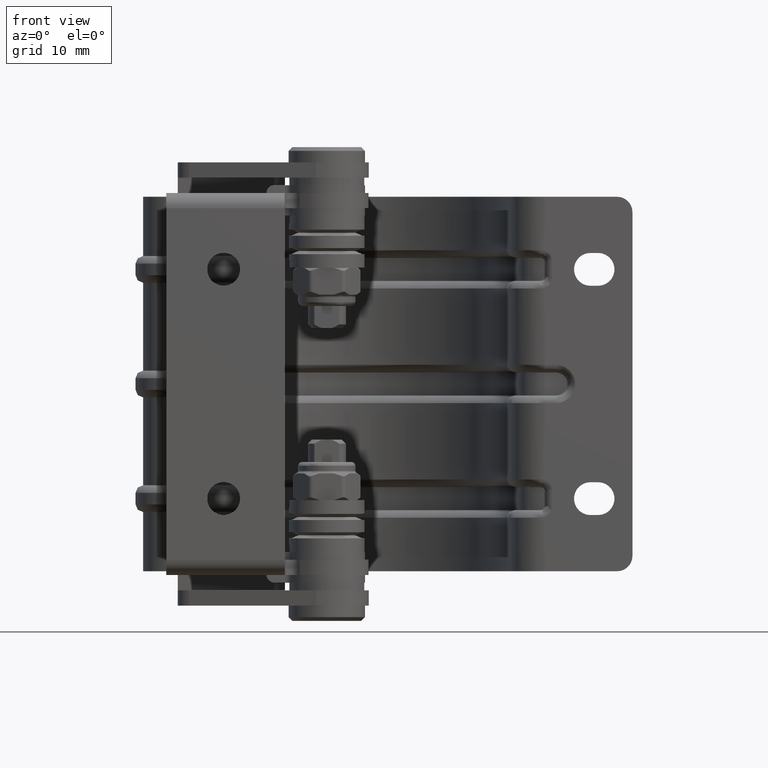
[diagram: clean part render]
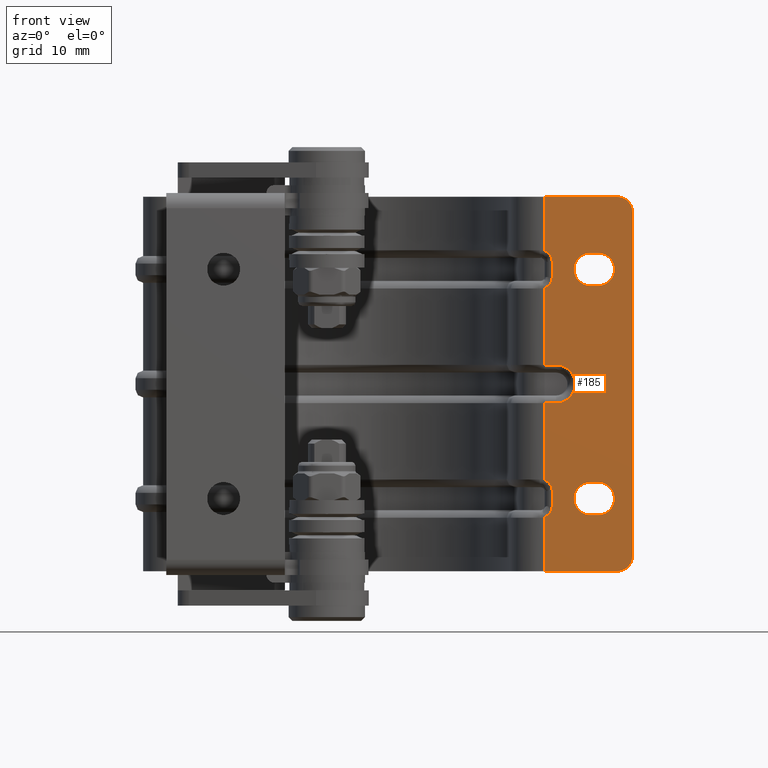
[diagram: same view with one face highlighted and labeled with its STEP entity id]
A machine part, front view. The second image highlights one B-rep face of the part: STEP entity #185.
In plain terms, the highlighted planar face has unit normal (0, -1, 0).
Its self-contained STEP definition (entity closure, byte-faithful):
#185=ADVANCED_FACE('',(#1269,#1270,#1271),#1268,.T.);
#1268=PLANE('',#5888);
#1269=FACE_OUTER_BOUND('',#5889,.T.);
#1270=FACE_BOUND('',#5890,.T.);
#1271=FACE_BOUND('',#5891,.T.);
#5885=CARTESIAN_POINT('',(-2.94000000005E+01,5.99999999896E+00,-4.11500000001E+01));
#5886=DIRECTION('',(0.00000000000E+00,1.00000000000E+00,0.00000000000E+00));
#5887=DIRECTION('',(0.00000000000E+00,0.00000000000E+00,1.00000000000E+00));
#5888=AXIS2_PLACEMENT_3D('',#5885,#5886,#5887);
#5889=EDGE_LOOP('',(#9250,#9251,#9252,#9253,#9254,#9255,#9256,#9257,#9258,#9259,#9260,#9261,#9262,#9263,#9264,#9265,#9266,#9267));
#5890=EDGE_LOOP('',(#9268,#9269,#9270,#9271));
#5891=EDGE_LOOP('',(#9272,#9273,#9274,#9275));
#9250=ORIENTED_EDGE('',*,*,#11203,.T.);
#9251=ORIENTED_EDGE('',*,*,#11114,.T.);
#9252=ORIENTED_EDGE('',*,*,#11181,.F.);
#9253=ORIENTED_EDGE('',*,*,#11177,.F.);
#9254=ORIENTED_EDGE('',*,*,#11204,.T.);
#9255=ORIENTED_EDGE('',*,*,#11205,.T.);
#9256=ORIENTED_EDGE('',*,*,#11206,.T.);
#9257=ORIENTED_EDGE('',*,*,#11207,.F.);
#9258=ORIENTED_EDGE('',*,*,#11208,.T.);
#9259=ORIENTED_EDGE('',*,*,#11209,.T.);
#9260=ORIENTED_EDGE('',*,*,#11210,.T.);
#9261=ORIENTED_EDGE('',*,*,#11211,.F.);
#9262=ORIENTED_EDGE('',*,*,#11212,.T.);
#9263=ORIENTED_EDGE('',*,*,#11213,.T.);
#9264=ORIENTED_EDGE('',*,*,#11214,.T.);
#9265=ORIENTED_EDGE('',*,*,#11215,.F.);
#9266=ORIENTED_EDGE('',*,*,#11193,.T.);
#9267=ORIENTED_EDGE('',*,*,#11118,.T.);
#9268=ORIENTED_EDGE('',*,*,#11216,.F.);
#9269=ORIENTED_EDGE('',*,*,#11217,.F.);
#9270=ORIENTED_EDGE('',*,*,#11218,.F.);
#9271=ORIENTED_EDGE('',*,*,#11219,.F.);
#9272=ORIENTED_EDGE('',*,*,#11220,.F.);
#9273=ORIENTED_EDGE('',*,*,#11221,.F.);
#9274=ORIENTED_EDGE('',*,*,#11222,.F.);
#9275=ORIENTED_EDGE('',*,*,#11223,.F.);
#11114=EDGE_CURVE('',#13174,#13175,#13176,.T.);
#11118=EDGE_CURVE('',#13202,#13203,#13204,.T.);
#11177=EDGE_CURVE('',#12313,#13599,#13600,.T.);
#11181=EDGE_CURVE('',#13599,#13175,#13625,.T.);
#11193=EDGE_CURVE('',#13706,#13202,#13707,.T.);
#11203=EDGE_CURVE('',#13203,#13174,#13774,.T.);
#11204=EDGE_CURVE('',#12313,#13780,#13781,.T.);
#11205=EDGE_CURVE('',#13780,#13787,#13788,.T.);
#11206=EDGE_CURVE('',#13787,#13794,#13795,.T.);
#11207=EDGE_CURVE('',#13801,#13794,#13802,.T.);
#11208=EDGE_CURVE('',#13801,#13808,#13809,.T.);
#11209=EDGE_CURVE('',#13808,#13815,#13816,.T.);
#11210=EDGE_CURVE('',#13815,#13822,#13823,.T.);
#11211=EDGE_CURVE('',#13829,#13822,#13830,.T.);
#11212=EDGE_CURVE('',#13829,#13836,#13837,.T.);
#11213=EDGE_CURVE('',#13836,#13843,#13844,.T.);
#11214=EDGE_CURVE('',#13843,#13850,#13851,.T.);
#11215=EDGE_CURVE('',#13706,#13850,#13857,.T.);
#11216=EDGE_CURVE('',#13863,#13864,#13865,.T.);
#11217=EDGE_CURVE('',#13871,#13863,#13872,.T.);
#11218=EDGE_CURVE('',#13878,#13871,#13879,.T.);
#11219=EDGE_CURVE('',#13864,#13878,#13885,.T.);
#11220=EDGE_CURVE('',#13891,#13892,#13893,.T.);
#11221=EDGE_CURVE('',#13899,#13891,#13900,.T.);
#11222=EDGE_CURVE('',#13906,#13899,#13907,.T.);
#11223=EDGE_CURVE('',#13892,#13906,#13913,.T.);
#12313=VERTEX_POINT('',#18947);
#13174=VERTEX_POINT('',#19516);
#13175=VERTEX_POINT('',#19517);
#13176=CIRCLE('',#19521,2.00000000000E+00);
#13202=VERTEX_POINT('',#19534);
#13203=VERTEX_POINT('',#19535);
#13204=CIRCLE('',#19539,2.00000000000E+00);
#13599=VERTEX_POINT('',#19771);
#13600=LINE('',#19772,#19773);
#13625=LINE('',#19788,#19789);
#13706=VERTEX_POINT('',#19838);
#13707=LINE('',#19839,#19840);
#13774=LINE('',#19881,#19882);
#13780=VERTEX_POINT('',#19884);
#13781=CIRCLE('',#19888,1.50000000000E+00);
#13787=VERTEX_POINT('',#19889);
#13788=LINE('',#19890,#19891);
#13794=VERTEX_POINT('',#19893);
#13795=CIRCLE('',#19897,1.50000000000E+00);
#13801=VERTEX_POINT('',#19898);
#13802=LINE('',#19899,#19900);
#13808=VERTEX_POINT('',#19902);
#13809=LINE('',#19903,#19904);
#13815=VERTEX_POINT('',#19906);
#13816=CIRCLE('',#19910,2.50000000000E+00);
#13822=VERTEX_POINT('',#19911);
#13823=LINE('',#19912,#19913);
#13829=VERTEX_POINT('',#19915);
#13830=LINE('',#19916,#19917);
#13836=VERTEX_POINT('',#19919);
#13837=CIRCLE('',#19923,1.50000000000E+00);
#13843=VERTEX_POINT('',#19924);
#13844=LINE('',#19925,#19926);
#13850=VERTEX_POINT('',#19928);
#13851=CIRCLE('',#19932,1.50000000000E+00);
#13857=LINE('',#19933,#19934);
#13863=VERTEX_POINT('',#19936);
#13864=VERTEX_POINT('',#19937);
#13865=LINE('',#19938,#19939);
#13871=VERTEX_POINT('',#19941);
#13872=CIRCLE('',#19945,2.15000000022E+00);
#13878=VERTEX_POINT('',#19946);
#13879=LINE('',#19947,#19948);
#13885=CIRCLE('',#19953,2.15000000022E+00);
#13891=VERTEX_POINT('',#19954);
#13892=VERTEX_POINT('',#19955);
#13893=LINE('',#19956,#19957);
#13899=VERTEX_POINT('',#19959);
#13900=CIRCLE('',#19963,2.15000000022E+00);
#13906=VERTEX_POINT('',#19964);
#13907=LINE('',#19965,#19966);
#13913=CIRCLE('',#19971,2.15000000022E+00);
#18947=CARTESIAN_POINT('',(-1.74142135635E+01,5.99999999896E+00,-2.84999999976E+01));
#19516=CARTESIAN_POINT('',(-2.25000000004E+01,5.99999999896E+00,-3.99999999998E+01));
#19517=CARTESIAN_POINT('',(-2.45000000004E+01,5.99999999896E+00,-3.79999999998E+01));
#19518=CARTESIAN_POINT('',(-2.25000000004E+01,5.99999999896E+00,-3.79999999998E+01));
#19519=DIRECTION('',(0.00000000000E+00,1.00000000000E+00,-0.00000000000E+00));
#19520=DIRECTION('',(-0.00000000000E+00,-0.00000000000E+00,-1.00000000000E+00));
#19521=AXIS2_PLACEMENT_3D('',#19518,#19519,#19520);
#19534=CARTESIAN_POINT('',(2.45000000004E+01,5.99999999896E+00,-3.79999999998E+01));
#19535=CARTESIAN_POINT('',(2.25000000004E+01,5.99999999896E+00,-3.99999999998E+01));
#19536=CARTESIAN_POINT('',(2.25000000004E+01,5.99999999896E+00,-3.79999999998E+01));
#19537=DIRECTION('',(0.00000000000E+00,1.00000000000E+00,-0.00000000000E+00));
#19538=DIRECTION('',(-0.00000000000E+00,-0.00000000000E+00,-1.00000000000E+00));
#19539=AXIS2_PLACEMENT_3D('',#19536,#19537,#19538);
#19771=CARTESIAN_POINT('',(-2.45000000004E+01,5.99999999896E+00,-2.84999999976E+01));
#19772=CARTESIAN_POINT('',(-1.74142135635E+01,5.99999999896E+00,-2.84999999976E+01));
#19773=VECTOR('',#19774,7.08578643687E+00);
#19774=DIRECTION('',(-1.00000000000E+00,0.00000000000E+00,0.00000000000E+00));
#19788=CARTESIAN_POINT('',(-2.45000000004E+01,5.99999999896E+00,-2.84999999976E+01));
#19789=VECTOR('',#19790,9.50000000224E+00);
#19790=DIRECTION('',(0.00000000000E+00,0.00000000000E+00,-1.00000000000E+00));
#19838=CARTESIAN_POINT('',(2.45000000004E+01,5.99999999896E+00,-2.84999999976E+01));
#19839=CARTESIAN_POINT('',(2.45000000004E+01,5.99999999896E+00,-2.84999999976E+01));
#19840=VECTOR('',#19841,9.50000000224E+00);
#19841=DIRECTION('',(0.00000000000E+00,0.00000000000E+00,-1.00000000000E+00));
#19881=CARTESIAN_POINT('',(2.25000000004E+01,5.99999999896E+00,-3.99999999998E+01));
#19882=VECTOR('',#19883,4.50000000008E+01);
#19883=DIRECTION('',(-1.00000000000E+00,0.00000000000E+00,0.00000000000E+00));
#19884=CARTESIAN_POINT('',(-1.60000000000E+01,5.99999999896E+00,-2.95000000009E+01));
#19885=CARTESIAN_POINT('',(-1.60000000000E+01,5.99999999896E+00,-2.80000000009E+01));
#19886=DIRECTION('',(0.00000000000E+00,-1.00000000000E+00,0.00000000000E+00));
#19887=DIRECTION('',(-0.00000000000E+00,-0.00000000000E+00,-1.00000000000E+00));
#19888=AXIS2_PLACEMENT_3D('',#19885,#19886,#19887);
#19889=CARTESIAN_POINT('',(-1.40000000000E+01,5.99999999896E+00,-2.95000000009E+01));
#19890=CARTESIAN_POINT('',(-1.60000000000E+01,5.99999999896E+00,-2.95000000009E+01));
#19891=VECTOR('',#19892,2.00000000000E+00);
#19892=DIRECTION('',(1.00000000000E+00,0.00000000000E+00,0.00000000000E+00));
#19893=CARTESIAN_POINT('',(-1.25857864365E+01,5.99999999896E+00,-2.84999999976E+01));
#19894=CARTESIAN_POINT('',(-1.40000000000E+01,5.99999999896E+00,-2.80000000009E+01));
#19895=DIRECTION('',(0.00000000000E+00,-1.00000000000E+00,0.00000000000E+00));
#19896=DIRECTION('',(-0.00000000000E+00,-0.00000000000E+00,-1.00000000000E+00));
#19897=AXIS2_PLACEMENT_3D('',#19894,#19895,#19896);
#19898=CARTESIAN_POINT('',(-2.50000000000E+00,5.99999999896E+00,-2.84999999976E+01));
#19899=CARTESIAN_POINT('',(-2.50000000000E+00,5.99999999896E+00,-2.84999999976E+01));
#19900=VECTOR('',#19901,1.00857864365E+01);
#19901=DIRECTION('',(-1.00000000000E+00,0.00000000000E+00,0.00000000000E+00));
#19902=CARTESIAN_POINT('',(-2.50000000000E+00,5.99999999896E+00,-3.00000000019E+01));
#19903=CARTESIAN_POINT('',(-2.50000000000E+00,5.99999999896E+00,-2.84999999976E+01));
#19904=VECTOR('',#19905,1.50000000429E+00);
#19905=DIRECTION('',(0.00000000000E+00,0.00000000000E+00,-1.00000000000E+00));
#19906=CARTESIAN_POINT('',(2.50000000000E+00,5.99999999896E+00,-3.00000000019E+01));
#19907=CARTESIAN_POINT('',(1.11022302463E-13,5.99999999896E+00,-3.00000000019E+01));
#19908=DIRECTION('',(0.00000000000E+00,-1.00000000000E+00,0.00000000000E+00));
#19909=DIRECTION('',(1.00000000000E+00,0.00000000000E+00,1.83690953073E-16));
#19910=AXIS2_PLACEMENT_3D('',#19907,#19908,#19909);
#19911=CARTESIAN_POINT('',(2.50000000000E+00,5.99999999896E+00,-2.84999999976E+01));
#19912=CARTESIAN_POINT('',(2.50000000000E+00,5.99999999896E+00,-3.00000000019E+01));
#19913=VECTOR('',#19914,1.50000000429E+00);
#19914=DIRECTION('',(0.00000000000E+00,0.00000000000E+00,1.00000000000E+00));
#19915=CARTESIAN_POINT('',(1.25857864365E+01,5.99999999896E+00,-2.84999999976E+01));
#19916=CARTESIAN_POINT('',(1.25857864365E+01,5.99999999896E+00,-2.84999999976E+01));
#19917=VECTOR('',#19918,1.00857864365E+01);
#19918=DIRECTION('',(-1.00000000000E+00,0.00000000000E+00,0.00000000000E+00));
#19919=CARTESIAN_POINT('',(1.40000000000E+01,5.99999999896E+00,-2.95000000009E+01));
#19920=CARTESIAN_POINT('',(1.40000000000E+01,5.99999999896E+00,-2.80000000009E+01));
#19921=DIRECTION('',(0.00000000000E+00,-1.00000000000E+00,0.00000000000E+00));
#19922=DIRECTION('',(-0.00000000000E+00,-0.00000000000E+00,-1.00000000000E+00));
#19923=AXIS2_PLACEMENT_3D('',#19920,#19921,#19922);
#19924=CARTESIAN_POINT('',(1.60000000000E+01,5.99999999896E+00,-2.95000000009E+01));
#19925=CARTESIAN_POINT('',(1.40000000000E+01,5.99999999896E+00,-2.95000000009E+01));
#19926=VECTOR('',#19927,2.00000000000E+00);
#19927=DIRECTION('',(1.00000000000E+00,0.00000000000E+00,0.00000000000E+00));
#19928=CARTESIAN_POINT('',(1.74142135635E+01,5.99999999896E+00,-2.84999999976E+01));
#19929=CARTESIAN_POINT('',(1.60000000000E+01,5.99999999896E+00,-2.80000000009E+01));
#19930=DIRECTION('',(0.00000000000E+00,-1.00000000000E+00,0.00000000000E+00));
#19931=DIRECTION('',(-0.00000000000E+00,-0.00000000000E+00,-1.00000000000E+00));
#19932=AXIS2_PLACEMENT_3D('',#19929,#19930,#19931);
#19933=CARTESIAN_POINT('',(2.45000000004E+01,5.99999999896E+00,-2.84999999976E+01));
#19934=VECTOR('',#19935,7.08578643687E+00);
#19935=DIRECTION('',(-1.00000000000E+00,0.00000000000E+00,0.00000000000E+00));
#19936=CARTESIAN_POINT('',(1.28500000010E+01,5.99999999895E+00,-3.55000000041E+01));
#19937=CARTESIAN_POINT('',(1.28500000010E+01,5.99999999895E+00,-3.44999999925E+01));
#19938=CARTESIAN_POINT('',(1.28500000010E+01,5.99999999896E+00,-3.55000000041E+01));
#19939=VECTOR('',#19940,1.00000001159E+00);
#19940=DIRECTION('',(0.00000000000E+00,0.00000000000E+00,1.00000000000E+00));
#19941=CARTESIAN_POINT('',(1.71500000014E+01,5.99999999895E+00,-3.55000000047E+01));
#19942=CARTESIAN_POINT('',(1.50000000012E+01,5.99999999895E+00,-3.54999999981E+01));
#19943=DIRECTION('',(0.00000000000E+00,1.00000000000E+00,0.00000000000E+00));
#19944=DIRECTION('',(1.00000000000E+00,-0.00000000000E+00,-3.07704066065E-09));
#19945=AXIS2_PLACEMENT_3D('',#19942,#19943,#19944);
#19946=CARTESIAN_POINT('',(1.71499999989E+01,5.99999999895E+00,-3.44999999940E+01));
#19947=CARTESIAN_POINT('',(1.71499999989E+01,5.99999999896E+00,-3.44999999940E+01));
#19948=VECTOR('',#19949,1.00000001068E+00);
#19949=DIRECTION('',(0.00000000000E+00,0.00000000000E+00,-1.00000000000E+00));
#19950=CARTESIAN_POINT('',(1.50000000012E+01,5.99999999895E+00,-3.44999999991E+01));
#19951=DIRECTION('',(0.00000000000E+00,1.00000000000E+00,-0.00000000000E+00));
#19952=DIRECTION('',(-0.00000000000E+00,-0.00000000000E+00,-1.00000000000E+00));
#19953=AXIS2_PLACEMENT_3D('',#19950,#19951,#19952);
#19954=CARTESIAN_POINT('',(-1.71499999989E+01,5.99999999895E+00,-3.55000000041E+01));
#19955=CARTESIAN_POINT('',(-1.71499999989E+01,5.99999999895E+00,-3.44999999925E+01));
#19956=CARTESIAN_POINT('',(-1.71499999989E+01,5.99999999896E+00,-3.55000000041E+01));
#19957=VECTOR('',#19958,1.00000001159E+00);
#19958=DIRECTION('',(0.00000000000E+00,0.00000000000E+00,1.00000000000E+00));
#19959=CARTESIAN_POINT('',(-1.28499999984E+01,5.99999999895E+00,-3.55000000047E+01));
#19960=CARTESIAN_POINT('',(-1.49999999987E+01,5.99999999895E+00,-3.54999999981E+01));
#19961=DIRECTION('',(0.00000000000E+00,1.00000000000E+00,0.00000000000E+00));
#19962=DIRECTION('',(1.00000000000E+00,-0.00000000000E+00,-3.07704066065E-09));
#19963=AXIS2_PLACEMENT_3D('',#19960,#19961,#19962);
#19964=CARTESIAN_POINT('',(-1.28500000010E+01,5.99999999895E+00,-3.44999999940E+01));
#19965=CARTESIAN_POINT('',(-1.28500000010E+01,5.99999999896E+00,-3.44999999940E+01));
#19966=VECTOR('',#19967,1.00000001068E+00);
#19967=DIRECTION('',(0.00000000000E+00,0.00000000000E+00,-1.00000000000E+00));
#19968=CARTESIAN_POINT('',(-1.49999999987E+01,5.99999999895E+00,-3.44999999991E+01));
#19969=DIRECTION('',(0.00000000000E+00,1.00000000000E+00,-0.00000000000E+00));
#19970=DIRECTION('',(-0.00000000000E+00,-0.00000000000E+00,-1.00000000000E+00));
#19971=AXIS2_PLACEMENT_3D('',#19968,#19969,#19970);